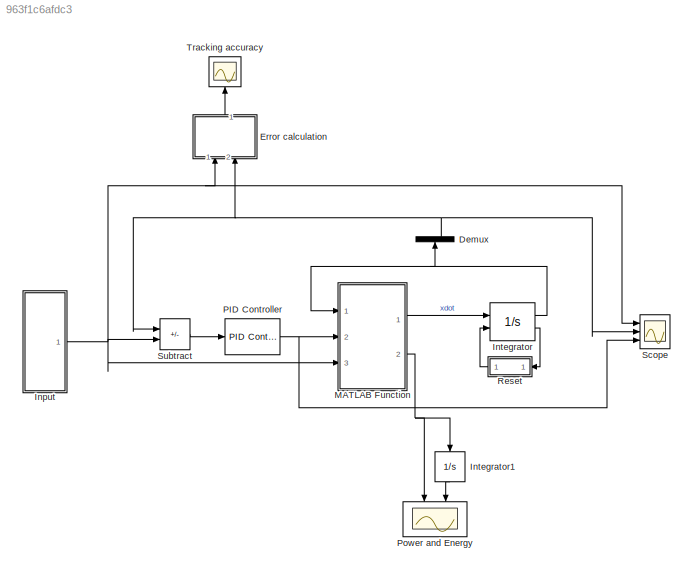
MODEL slx_963f1c6afdc3
KIND model
CONFIG AbsTol = auto
CONFIG EnableMultiTasking = off
CONFIG FixedStep = auto
CONFIG MaxStep = auto
CONFIG MinStep = auto
CONFIG RelTol = 1e-3
CONFIG SampleTimeConstraint = Unconstrained
CONFIG SolverName = VariableStepAuto
CONFIG StartTime = 0.0
CONFIG StopTime = 100
BLOCK [Demux] Demux
  NameLocation = left
  Outputs = 2
  Ports = [1, 2]
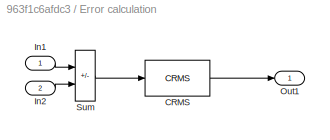
BLOCK [SubSystem] Error calculation
  NameLocation = right
  Ports = [2, 1]
  RequestExecContextInheritance = off
BLOCK [Reference] Error calculation/CRMS  REF=sdolib/RMS Blocks/CRMS
  Ports = [1, 1]
  SourceBlock = sdolib/RMS Blocks/CRMS
  SourceProductBaseCode = SO
  SourceType = Continuous RMS Value Block
BLOCK [Inport] Error calculation/In1
BLOCK [Inport] Error calculation/In2
  Port = 2
BLOCK [Outport] Error calculation/Out1
BLOCK [Sum] Error calculation/Sum
  IconShape = rectangular
  Inputs = +-
  Ports = [2, 1]
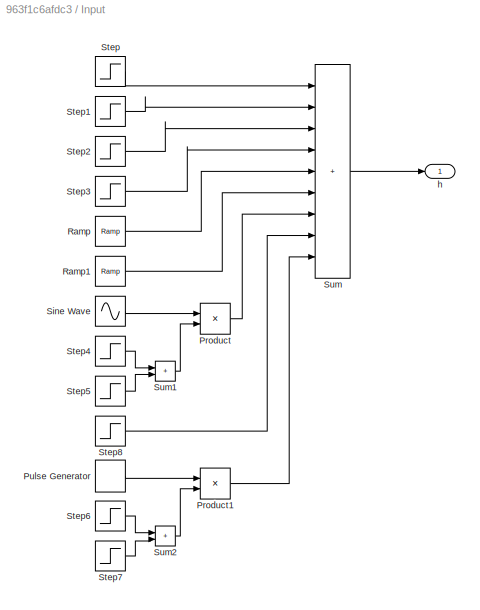
BLOCK [SubSystem] Input
  Ports = [0, 1]
  RequestExecContextInheritance = off
BLOCK [Product] Input/Product
  Ports = [2, 1]
BLOCK [Product] Input/Product1
  Ports = [2, 1]
BLOCK [DiscretePulseGenerator] Input/Pulse Generator
  Ports = [0, 1]
  PulseType = Time based
  PulseWidth = 50
BLOCK [Reference] Input/Ramp  REF=simulink/Sources/Ramp
  Ports = [0, 1]
  SourceBlock = simulink/Sources/Ramp
  SourceProductBaseCode = SL
  SourceType = Ramp
BLOCK [Reference] Input/Ramp1  REF=simulink/Sources/Ramp
  Ports = [0, 1]
  SourceBlock = simulink/Sources/Ramp
  SourceProductBaseCode = SL
  SourceType = Ramp
BLOCK [Sin] Input/Sine Wave
  Amplitude = 0.3
  Ports = [0, 1]
  SampleTime = 0
BLOCK [Step] Input/Step
  After = 1.44
  SampleTime = 0
  Time = 0
BLOCK [Step] Input/Step1
  After = -1.44
  SampleTime = 0
  Time = 10
BLOCK [Step] Input/Step2
  After = 0.4
  SampleTime = 0
  Time = 20
BLOCK [Step] Input/Step3
  After = -0.4
  SampleTime = 0
  Time = 30
BLOCK [Step] Input/Step4
  SampleTime = 0
  Time = 60
BLOCK [Step] Input/Step5
  After = -1
  SampleTime = 0
  Time = 70
BLOCK [Step] Input/Step6
  SampleTime = 0
  Time = 80
BLOCK [Step] Input/Step7
  After = -1
  SampleTime = 0
  Time = 90
BLOCK [Step] Input/Step8
  After = -0.3
  SampleTime = 0
  Time = 80
BLOCK [Sum] Input/Sum
  IconShape = rectangular
  Inputs = +++++++++
  Ports = [9, 1]
BLOCK [Sum] Input/Sum1
  IconShape = rectangular
  Ports = [2, 1]
BLOCK [Sum] Input/Sum2
  IconShape = rectangular
  Ports = [2, 1]
BLOCK [Outport] Input/h
BLOCK [Integrator] Integrator
  ExternalReset = rising
  InitialCondition = [0;0]
  LimitOutput = on
  LowerSaturationLimit = [-inf,0]
  Ports = [2, 2]
  ShowSaturationPort = on
  UpperSaturationLimit = [inf,1.44]
  ZeroCross = off
BLOCK [Integrator] Integrator1
  InitialCondition = [0;0]
  NameLocation = left
  Ports = [1, 1]
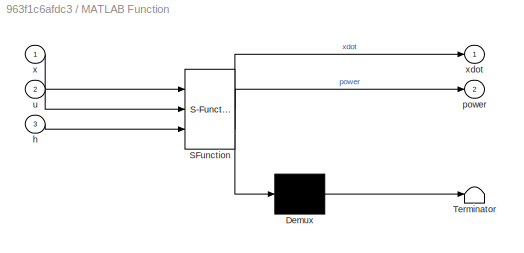
BLOCK [SubSystem] MATLAB Function
  ErrorFcn = Stateflow.Translate.translate
  PermitHierarchicalResolution = ExplicitOnly
  Ports = [3, 2]
  RequestExecContextInheritance = off
  SFBlockType = MATLAB Function
  TreatAsAtomicUnit = on
BLOCK [Demux] MATLAB Function/ Demux 
  Outputs = 1
  Ports = [1, 1]
BLOCK [S-Function] MATLAB Function/ SFunction 
  EnableBusSupport = on
  FunctionName = sf_sfun
  PortCounts = [3 3]
  Ports = [3, 3]
  SFcnIsStateOwnerBlock = off
  SFunctionDeploymentMode = off
  Tag = Stateflow S-Function 2
BLOCK [Terminator] MATLAB Function/ Terminator 
BLOCK [Inport] MATLAB Function/h
  Port = 3
BLOCK [Outport] MATLAB Function/power
  Port = 2
BLOCK [Inport] MATLAB Function/u
  Port = 2
BLOCK [Inport] MATLAB Function/x
BLOCK [Outport] MATLAB Function/xdot
BLOCK [Reference] PID Controller  REF=pid_lib/PID Controller
  Ports = [1, 1]
  SourceBlock = pid_lib/PID Controller
  SourceProductBaseCode = SL
  SourceType = PID 1dof
BLOCK [Scope] Power and Energy
  Floating = off
  NameLocation = left
  NumInputPorts = 2
  Ports = [2]
  ScopeSpecificationString = Simulink.scopes.TimeScopeBlockCfg('CurrentConfiguration', extmgr.ConfigurationSet(extmgr.Configuration('Core','General UI',true),extmgr.Configuration('Core','Source UI',true),extmgr.Configuration('Sources','WiredSimulink',true,'DataLoggingVariableName','ScopeData1'),extmgr.Configuration('Visuals','Time Domain',true,'SerializedDisplays',{struct('MinYLimReal','-84.09718','MaxYLimReal','816.06349','Y...<+2293ch>
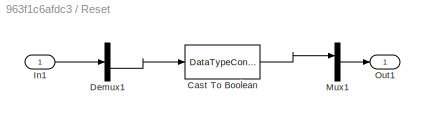
BLOCK [SubSystem] Reset
  Ports = [1, 1]
  RequestExecContextInheritance = off
BLOCK [DataTypeConversion] Reset/Cast To Boolean
  OutDataTypeStr = boolean
  RndMeth = Floor
  SaturateOnIntegerOverflow = off
BLOCK [Demux] Reset/Demux1
  Outputs = 2
  Ports = [1, 2]
BLOCK [Inport] Reset/In1
BLOCK [Mux] Reset/Mux1
  DisplayOption = bar
  Inputs = 2
  Ports = [2, 1]
BLOCK [Outport] Reset/Out1
BLOCK [Scope] Scope
  Floating = off
  NumInputPorts = 3
  Ports = [3]
  ScopeSpecificationString = Simulink.scopes.TimeScopeBlockCfg('CurrentConfiguration', extmgr.ConfigurationSet(extmgr.Configuration('Core','General UI',true),extmgr.Configuration('Core','Source UI',true),extmgr.Configuration('Sources','WiredSimulink',true),extmgr.Configuration('Visuals','Time Domain',true,'SerializedDisplays',{struct('MinYLimReal','-0.1875','MaxYLimReal','1.6875','YLabelReal','','MinYLimMag','0.00000','MaxYLi...<+3078ch>
BLOCK [Sum] Subtract
  IconShape = rectangular
  Inputs = -+
  Ports = [2, 1]
BLOCK [Scope] Tracking accuracy
  Floating = off
  NameLocation = right
  NumInputPorts = 1
  Ports = [1]
  ScopeSpecificationString = Simulink.scopes.TimeScopeBlockCfg('CurrentConfiguration', extmgr.ConfigurationSet(extmgr.Configuration('Core','General UI',true),extmgr.Configuration('Core','Source UI',true),extmgr.Configuration('Sources','WiredSimulink',true,'DataLoggingVariableName','ScopeData2'),extmgr.Configuration('Visuals','Time Domain',true,'SerializedDisplays',{struct('MinYLimReal','-0.18','MaxYLimReal','1.62','YLabelReal...<+1391ch>
NET Demux:2 -> Error calculation:2, Scope:2, Subtract:1
LINE Error calculation/CRMS:1 -> Error calculation/Out1:1
LINE Error calculation/In1:1 -> Error calculation/Sum:1
LINE Error calculation/In2:1 -> Error calculation/Sum:2
LINE Error calculation/Sum:1 -> Error calculation/CRMS:1
LINE Error calculation:1 -> Tracking accuracy:1
LINE Input/Product1:1 -> Input/Sum:9
LINE Input/Product:1 -> Input/Sum:7
LINE Input/Pulse Generator:1 -> Input/Product1:1
LINE Input/Ramp1:1 -> Input/Sum:6
LINE Input/Ramp:1 -> Input/Sum:5
LINE Input/Sine Wave:1 -> Input/Product:1
LINE Input/Step1:1 -> Input/Sum:2
LINE Input/Step2:1 -> Input/Sum:3
LINE Input/Step3:1 -> Input/Sum:4
LINE Input/Step4:1 -> Input/Sum1:1
LINE Input/Step5:1 -> Input/Sum1:2
LINE Input/Step6:1 -> Input/Sum2:1
LINE Input/Step7:1 -> Input/Sum2:2
LINE Input/Step8:1 -> Input/Sum:8
LINE Input/Step:1 -> Input/Sum:1
LINE Input/Sum1:1 -> Input/Product:2
LINE Input/Sum2:1 -> Input/Product1:2
LINE Input/Sum:1 -> Input/h:1
NET Input:1 -> Error calculation:1, MATLAB Function:3, Scope:1, Subtract:2
LINE Integrator1:1 -> Power and Energy:2
NET Integrator:1 -> Demux:1, MATLAB Function:1
LINE Integrator:2 -> Reset:1
LINE MATLAB Function:1 -> Integrator:1
NET MATLAB Function:2 -> Integrator1:1, Power and Energy:1
NET PID Controller:1 -> MATLAB Function:2, Scope:3
LINE Reset/Cast To Boolean:1 -> Reset/Mux1:1
LINE Reset/Demux1:2 -> Reset/Cast To Boolean:1
LINE Reset/In1:1 -> Reset/Demux1:1
LINE Reset/Mux1:1 -> Reset/Out1:1
LINE Reset:1 -> Integrator:2
LINE Subtract:1 -> PID Controller:1
note: NET lines group one-source signal fan-out (src -> all destinations, sorted); 1:1 wires keep LINE
CHART MATLAB Function states=1 transitions=1
  STATE_LABEL 'eML_blk_kernel()'
  STATE_LABEL 'SCRIPT:\nfunction [xdot,power] = model(x,u,h)\n%inputs - x: (2x1) state vector\n%         x(1)- v   m/s\n%         x(2)- z   m\n%       - u:  control vector\n%         u(1)- engine throttle as percentage\n\ng=9.81;\n\ncartmass        = 0.454;      %kg\narmmass         = 0.1;        %kg\nmukin           = 0.14;\nmustatic        = 0.17;\nnormalforce     = 7.5;        %N  \ncablemass       = 2*(0.462*0.190*x(2)+0.3...<+733ch>'
CHART  states=0 transitions=0
